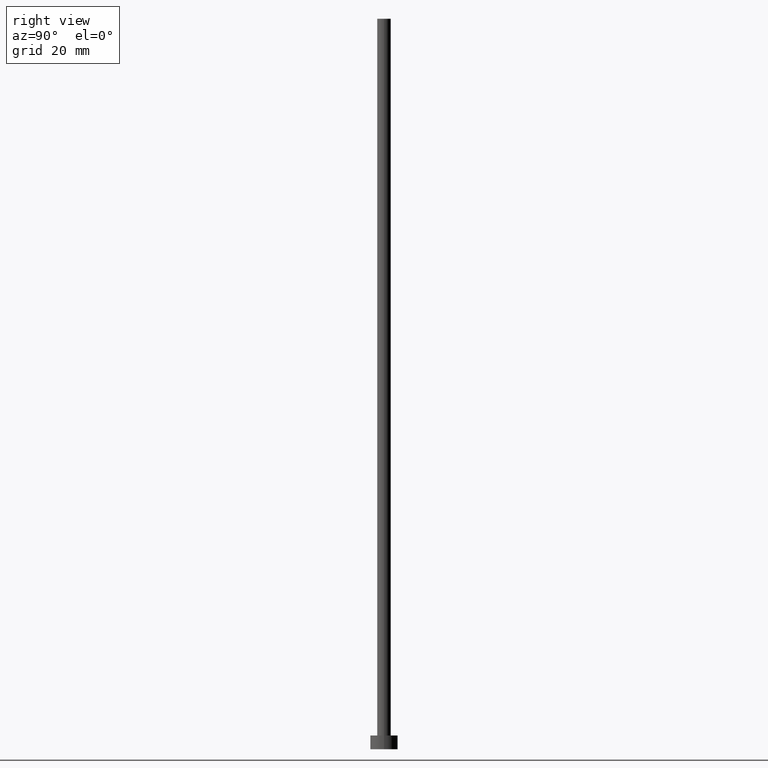
[diagram: clean part render]
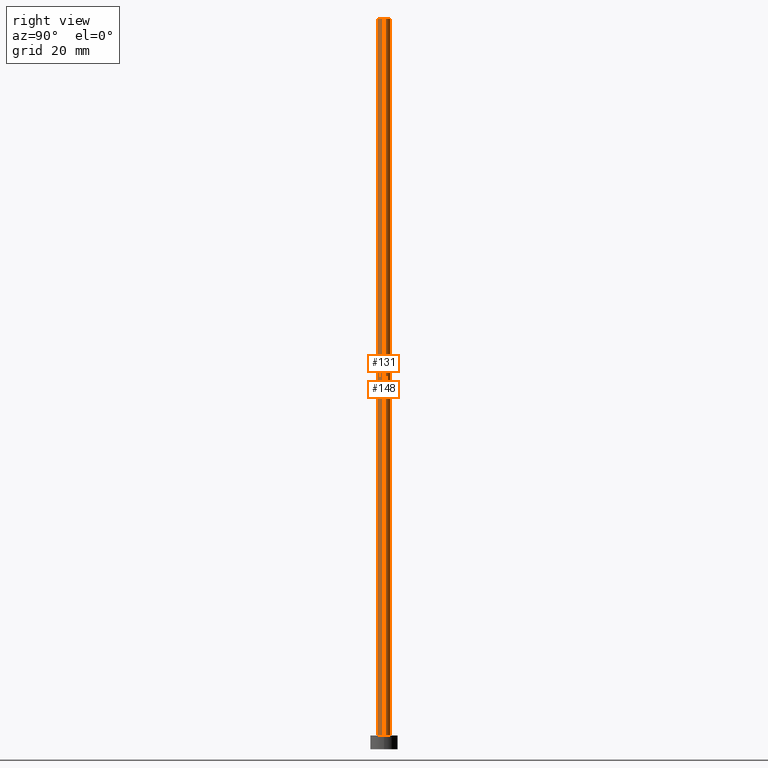
[diagram: same view with one multi-face feature highlighted, each face labeled with its STEP entity id]
A machine part, right view. The highlighted faces form ONE feature: a constant-radius fillet chain: 2 tangent blend faces with common blend radius 1.5 mm. The faces share edges in the B-rep.
Their STEP definitions:
[1] entity #131 (Cylinder):
#2 = DIRECTION ( 'NONE',  ( -0.000000000000000000, -0.000000000000000000, -1.000000000000000000 ) ) ;
#5 = EDGE_LOOP ( 'NONE', ( #104, #210, #172, #67 ) ) ;
#17 = DIRECTION ( 'NONE',  ( 1.000000000000000000, 0.000000000000000000, 0.000000000000000000 ) ) ;
#18 = DIRECTION ( 'NONE',  ( -1.000000000000000000, 0.000000000000000000, 0.000000000000000000 ) ) ;
#21 = AXIS2_PLACEMENT_3D ( 'NONE', #247, #2, #18 ) ;
#24 = LINE ( 'NONE', #244, #25 ) ;
#25 = VECTOR ( 'NONE', #72, 1000.000000000000000 ) ;
#28 = EDGE_CURVE ( 'NONE', #93, #136, #211, .T. ) ;
#41 = FACE_OUTER_BOUND ( 'NONE', #5, .T. ) ;
#66 = EDGE_CURVE ( 'NONE', #93, #214, #24, .T. ) ;
#67 = ORIENTED_EDGE ( 'NONE', *, *, #112, .T. ) ;
#69 = EDGE_CURVE ( 'NONE', #136, #100, #144, .T. ) ;
#70 = CARTESIAN_POINT ( 'NONE',  ( 1.500000000000000222, 1.836970198721030181E-16, 3.000000000000000000 ) ) ;
#72 = DIRECTION ( 'NONE',  ( -0.000000000000000000, -0.000000000000000000, -1.000000000000000000 ) ) ;
#84 = CARTESIAN_POINT ( 'NONE',  ( 1.500000000000000222, 1.836970198721030181E-16, 160.0000000000000000 ) ) ;
#87 = CARTESIAN_POINT ( 'NONE',  ( -1.500000000000000222, 0.000000000000000000, 3.000000000000000000 ) ) ;
#92 = DIRECTION ( 'NONE',  ( 1.000000000000000000, 0.000000000000000000, 0.000000000000000000 ) ) ;
#93 = VERTEX_POINT ( 'NONE', #240 ) ;
#100 = VERTEX_POINT ( 'NONE', #70 ) ;
#101 = VECTOR ( 'NONE', #218, 1000.000000000000000 ) ;
#104 = ORIENTED_EDGE ( 'NONE', *, *, #69, .F. ) ;
#110 = AXIS2_PLACEMENT_3D ( 'NONE', #139, #168, #17 ) ;
#112 = EDGE_CURVE ( 'NONE', #214, #100, #113, .T. ) ;
#113 = CIRCLE ( 'NONE', #110, 1.500000000000000222 ) ;
#131 = ADVANCED_FACE ( 'NONE', ( #41 ), #160, .T. ) ;
#136 = VERTEX_POINT ( 'NONE', #84 ) ;
#139 = CARTESIAN_POINT ( 'NONE',  ( 0.000000000000000000, 0.000000000000000000, 3.000000000000000000 ) ) ;
#144 = LINE ( 'NONE', #220, #101 ) ;
#160 = CYLINDRICAL_SURFACE ( 'NONE', #21, 1.500000000000000222 ) ;
#168 = DIRECTION ( 'NONE',  ( 0.000000000000000000, 0.000000000000000000, 1.000000000000000000 ) ) ;
#172 = ORIENTED_EDGE ( 'NONE', *, *, #66, .T. ) ;
#177 = CARTESIAN_POINT ( 'NONE',  ( 0.000000000000000000, 0.000000000000000000, 160.0000000000000000 ) ) ;
#210 = ORIENTED_EDGE ( 'NONE', *, *, #28, .F. ) ;
#211 = CIRCLE ( 'NONE', #250, 1.500000000000000222 ) ;
#214 = VERTEX_POINT ( 'NONE', #87 ) ;
#216 = DIRECTION ( 'NONE',  ( 0.000000000000000000, 0.000000000000000000, 1.000000000000000000 ) ) ;
#218 = DIRECTION ( 'NONE',  ( -0.000000000000000000, -0.000000000000000000, -1.000000000000000000 ) ) ;
#220 = CARTESIAN_POINT ( 'NONE',  ( 1.500000000000000222, 1.836970198721030181E-16, 160.0000000000000000 ) ) ;
#240 = CARTESIAN_POINT ( 'NONE',  ( -1.500000000000000222, 0.000000000000000000, 160.0000000000000000 ) ) ;
#244 = CARTESIAN_POINT ( 'NONE',  ( -1.500000000000000222, 0.000000000000000000, 160.0000000000000000 ) ) ;
#247 = CARTESIAN_POINT ( 'NONE',  ( 0.000000000000000000, 0.000000000000000000, 160.0000000000000000 ) ) ;
#250 = AXIS2_PLACEMENT_3D ( 'NONE', #177, #216, #92 ) ;
[2] entity #148 (Cylinder):
#1 = AXIS2_PLACEMENT_3D ( 'NONE', #147, #209, #152 ) ;
#7 = ORIENTED_EDGE ( 'NONE', *, *, #19, .T. ) ;
#19 = EDGE_CURVE ( 'NONE', #100, #214, #215, .T. ) ;
#24 = LINE ( 'NONE', #244, #25 ) ;
#25 = VECTOR ( 'NONE', #72, 1000.000000000000000 ) ;
#29 = CIRCLE ( 'NONE', #126, 1.500000000000000222 ) ;
#31 = DIRECTION ( 'NONE',  ( 1.000000000000000000, 0.000000000000000000, 0.000000000000000000 ) ) ;
#46 = ORIENTED_EDGE ( 'NONE', *, *, #232, .F. ) ;
#47 = CARTESIAN_POINT ( 'NONE',  ( 0.000000000000000000, 0.000000000000000000, 3.000000000000000000 ) ) ;
#66 = EDGE_CURVE ( 'NONE', #93, #214, #24, .T. ) ;
#68 = EDGE_LOOP ( 'NONE', ( #46, #241, #7, #85 ) ) ;
#69 = EDGE_CURVE ( 'NONE', #136, #100, #144, .T. ) ;
#70 = CARTESIAN_POINT ( 'NONE',  ( 1.500000000000000222, 1.836970198721030181E-16, 3.000000000000000000 ) ) ;
#72 = DIRECTION ( 'NONE',  ( -0.000000000000000000, -0.000000000000000000, -1.000000000000000000 ) ) ;
#84 = CARTESIAN_POINT ( 'NONE',  ( 1.500000000000000222, 1.836970198721030181E-16, 160.0000000000000000 ) ) ;
#85 = ORIENTED_EDGE ( 'NONE', *, *, #66, .F. ) ;
#87 = CARTESIAN_POINT ( 'NONE',  ( -1.500000000000000222, 0.000000000000000000, 3.000000000000000000 ) ) ;
#93 = VERTEX_POINT ( 'NONE', #240 ) ;
#100 = VERTEX_POINT ( 'NONE', #70 ) ;
#101 = VECTOR ( 'NONE', #218, 1000.000000000000000 ) ;
#106 = DIRECTION ( 'NONE',  ( 1.000000000000000000, 0.000000000000000000, 0.000000000000000000 ) ) ;
#126 = AXIS2_PLACEMENT_3D ( 'NONE', #195, #164, #31 ) ;
#130 = AXIS2_PLACEMENT_3D ( 'NONE', #47, #174, #106 ) ;
#136 = VERTEX_POINT ( 'NONE', #84 ) ;
#144 = LINE ( 'NONE', #220, #101 ) ;
#147 = CARTESIAN_POINT ( 'NONE',  ( 0.000000000000000000, 0.000000000000000000, 160.0000000000000000 ) ) ;
#148 = ADVANCED_FACE ( 'NONE', ( #233 ), #229, .T. ) ;
#152 = DIRECTION ( 'NONE',  ( -1.000000000000000000, 0.000000000000000000, 0.000000000000000000 ) ) ;
#164 = DIRECTION ( 'NONE',  ( 0.000000000000000000, 0.000000000000000000, 1.000000000000000000 ) ) ;
#174 = DIRECTION ( 'NONE',  ( 0.000000000000000000, 0.000000000000000000, 1.000000000000000000 ) ) ;
#195 = CARTESIAN_POINT ( 'NONE',  ( 0.000000000000000000, 0.000000000000000000, 160.0000000000000000 ) ) ;
#209 = DIRECTION ( 'NONE',  ( -0.000000000000000000, -0.000000000000000000, -1.000000000000000000 ) ) ;
#214 = VERTEX_POINT ( 'NONE', #87 ) ;
#215 = CIRCLE ( 'NONE', #130, 1.500000000000000222 ) ;
#218 = DIRECTION ( 'NONE',  ( -0.000000000000000000, -0.000000000000000000, -1.000000000000000000 ) ) ;
#220 = CARTESIAN_POINT ( 'NONE',  ( 1.500000000000000222, 1.836970198721030181E-16, 160.0000000000000000 ) ) ;
#229 = CYLINDRICAL_SURFACE ( 'NONE', #1, 1.500000000000000222 ) ;
#232 = EDGE_CURVE ( 'NONE', #136, #93, #29, .T. ) ;
#233 = FACE_OUTER_BOUND ( 'NONE', #68, .T. ) ;
#240 = CARTESIAN_POINT ( 'NONE',  ( -1.500000000000000222, 0.000000000000000000, 160.0000000000000000 ) ) ;
#241 = ORIENTED_EDGE ( 'NONE', *, *, #69, .T. ) ;
#244 = CARTESIAN_POINT ( 'NONE',  ( -1.500000000000000222, 0.000000000000000000, 160.0000000000000000 ) ) ;